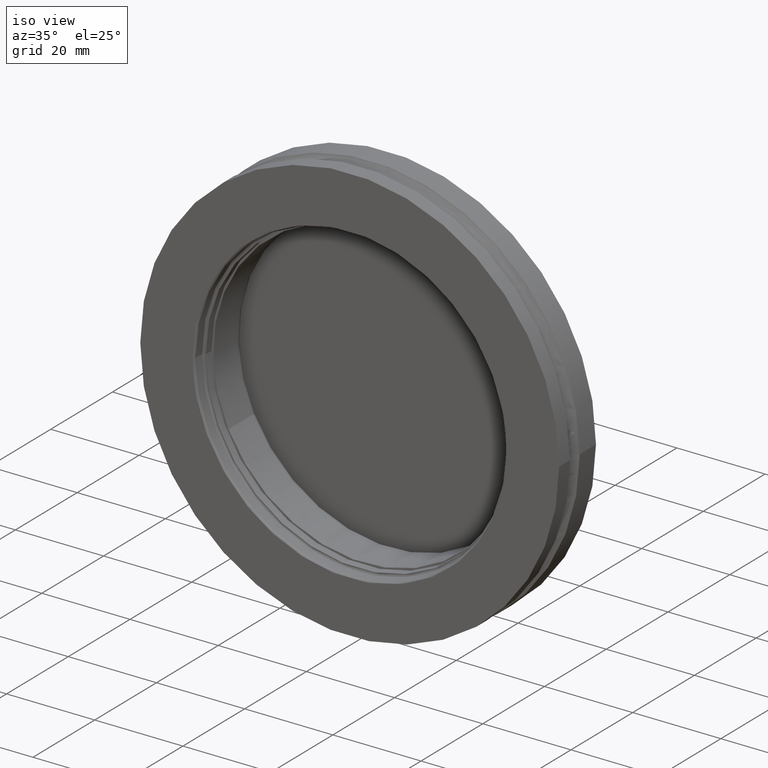
[diagram: clean part render]
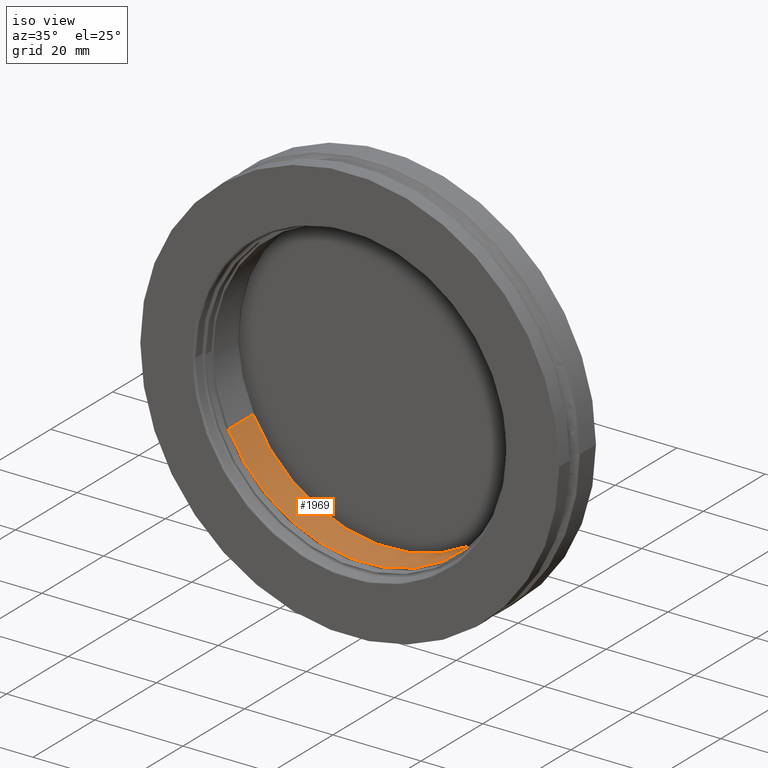
[diagram: same view with one face highlighted and labeled with its STEP entity id]
A machine part, iso view. The second image highlights one B-rep face of the part: STEP entity #1969.
In plain terms, the highlighted cylindrical surface (partial cylindrical patch) has radius 34.163 mm, axis along (-0, -1, 0).
Its self-contained STEP definition (entity closure, byte-faithful):
#23 = AXIS2_PLACEMENT_3D ( 'NONE', #1207, #1210, #1216 ) ;
#55 = CYLINDRICAL_SURFACE ( 'NONE', #23, 1.345000000000000000 ) ;
#56 = FACE_OUTER_BOUND ( 'NONE', #514, .T. ) ;
#234 = VECTOR ( 'NONE', #2093, 39.37007874015748100 ) ;
#235 = CIRCLE ( 'NONE', #624, 1.345000000000000000 ) ;
#237 = LINE ( 'NONE', #2078, #234 ) ;
#238 = VECTOR ( 'NONE', #2094, 39.37007874015748100 ) ;
#240 = LINE ( 'NONE', #2086, #238 ) ;
#264 = CIRCLE ( 'NONE', #650, 1.345000000000000000 ) ;
#468 = ORIENTED_EDGE ( 'NONE', *, *, #692, .T. ) ;
#469 = ORIENTED_EDGE ( 'NONE', *, *, #642, .T. ) ;
#486 = ORIENTED_EDGE ( 'NONE', *, *, #693, .F. ) ;
#487 = ORIENTED_EDGE ( 'NONE', *, *, #690, .F. ) ;
#514 = EDGE_LOOP ( 'NONE', ( #487, #486, #468, #469 ) ) ;
#624 = AXIS2_PLACEMENT_3D ( 'NONE', #2069, #2068, #2067 ) ;
#642 = EDGE_CURVE ( 'NONE', #1988, #1987, #264, .T. ) ;
#650 = AXIS2_PLACEMENT_3D ( 'NONE', #785, #784, #783 ) ;
#690 = EDGE_CURVE ( 'NONE', #1980, #1987, #240, .T. ) ;
#692 = EDGE_CURVE ( 'NONE', #1983, #1988, #237, .T. ) ;
#693 = EDGE_CURVE ( 'NONE', #1983, #1980, #235, .T. ) ;
#783 = DIRECTION ( 'NONE',  ( -1.000000000000000000, 1.205973789024651500E-016, 0.0000000000000000000 ) ) ;
#784 = DIRECTION ( 'NONE',  ( -1.224646799147352200E-016, -1.000000000000000000, 0.0000000000000000000 ) ) ;
#785 = CARTESIAN_POINT ( 'NONE',  ( -6.735557395310073400E-018, -0.05499999999999702300, -0.0000000000000000000 ) ) ;
#1190 = CARTESIAN_POINT ( 'NONE',  ( -1.208513144442658200, -0.05499999999999687800, -0.5903566546667518000 ) ) ;
#1191 = CARTESIAN_POINT ( 'NONE',  ( 1.208513144442658200, -0.05499999999999716900, 0.5903566546667516900 ) ) ;
#1195 = CARTESIAN_POINT ( 'NONE',  ( -1.208513144442658400, 0.2600000000000034500, -0.5903566546667519100 ) ) ;
#1206 = CARTESIAN_POINT ( 'NONE',  ( 1.208513144442658400, 0.2600000000000032300, 0.5903566546667518000 ) ) ;
#1207 = CARTESIAN_POINT ( 'NONE',  ( -3.638061437706961500E-016, -2.674999999999995800, 1.708443747144506400E-019 ) ) ;
#1210 = DIRECTION ( 'NONE',  ( -1.224646799147349000E-016, -1.000000000000000000, 7.482242047915948200E-032 ) ) ;
#1216 = DIRECTION ( 'NONE',  ( -0.8985227839722366200, 0.0000000000000000000, -0.4389268807931240300 ) ) ;
#1969 = ADVANCED_FACE ( 'NONE', ( #56 ), #55, .F. ) ;
#1980 = VERTEX_POINT ( 'NONE', #1206 ) ;
#1983 = VERTEX_POINT ( 'NONE', #1195 ) ;
#1987 = VERTEX_POINT ( 'NONE', #1191 ) ;
#1988 = VERTEX_POINT ( 'NONE', #1190 ) ;
#2067 = DIRECTION ( 'NONE',  ( -0.8985227839722366200, 1.015556874968127600E-016, -0.4389268807931240300 ) ) ;
#2068 = DIRECTION ( 'NONE',  ( -1.224646799147349000E-016, -1.000000000000000000, 7.482242047915948200E-032 ) ) ;
#2069 = CARTESIAN_POINT ( 'NONE',  ( -4.372308220949285500E-018, 0.2600000000000033400, 1.708443747142307500E-019 ) ) ;
#2078 = CARTESIAN_POINT ( 'NONE',  ( -1.208513144442658700, -2.674999999999995800, -0.5903566546667518000 ) ) ;
#2086 = CARTESIAN_POINT ( 'NONE',  ( 1.208513144442657800, -2.674999999999995800, 0.5903566546667516900 ) ) ;
#2093 = DIRECTION ( 'NONE',  ( -1.224646799147349000E-016, -1.000000000000000000, 7.482242047915948200E-032 ) ) ;
#2094 = DIRECTION ( 'NONE',  ( -1.224646799147349000E-016, -1.000000000000000000, 7.482242047915948200E-032 ) ) ;